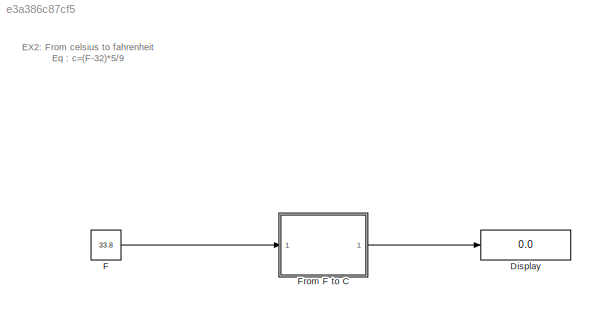
MODEL slx_e3a386c87cf5
KIND model
CONFIG AbsTol = auto
CONFIG EnableMultiTasking = off
CONFIG FixedStep = auto
CONFIG MaxStep = auto
CONFIG MinStep = auto
CONFIG RelTol = 1e-3
CONFIG SampleTimeConstraint = Unconstrained
CONFIG SolverName = VariableStepAuto
CONFIG StartTime = 0.0
CONFIG StopTime = 10.0
BLOCK [Display] Display
  Decimation = 1
  Ports = [1]
BLOCK [Constant] F
  Value = 33.8
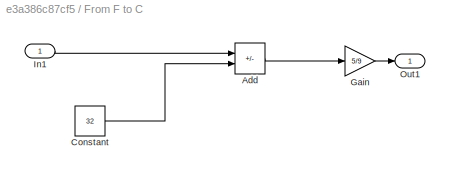
BLOCK [SubSystem] From F to C
  Ports = [1, 1]
  RequestExecContextInheritance = off
BLOCK [Sum] From F to C/Add
  IconShape = rectangular
  Inputs = +-
  Ports = [2, 1]
BLOCK [Constant] From F to C/Constant
  Value = 32
BLOCK [Gain] From F to C/Gain
  Gain = 5/9
BLOCK [Inport] From F to C/In1
BLOCK [Outport] From F to C/Out1
ANNOTATION (root): EX2: From celsius to fahrenheit Eq : c=(F-32)*5/9
LINE F:1 -> From F to C:1
LINE From F to C/Add:1 -> From F to C/Gain:1
LINE From F to C/Constant:1 -> From F to C/Add:2
LINE From F to C/Gain:1 -> From F to C/Out1:1
LINE From F to C/In1:1 -> From F to C/Add:1
LINE From F to C:1 -> Display:1
